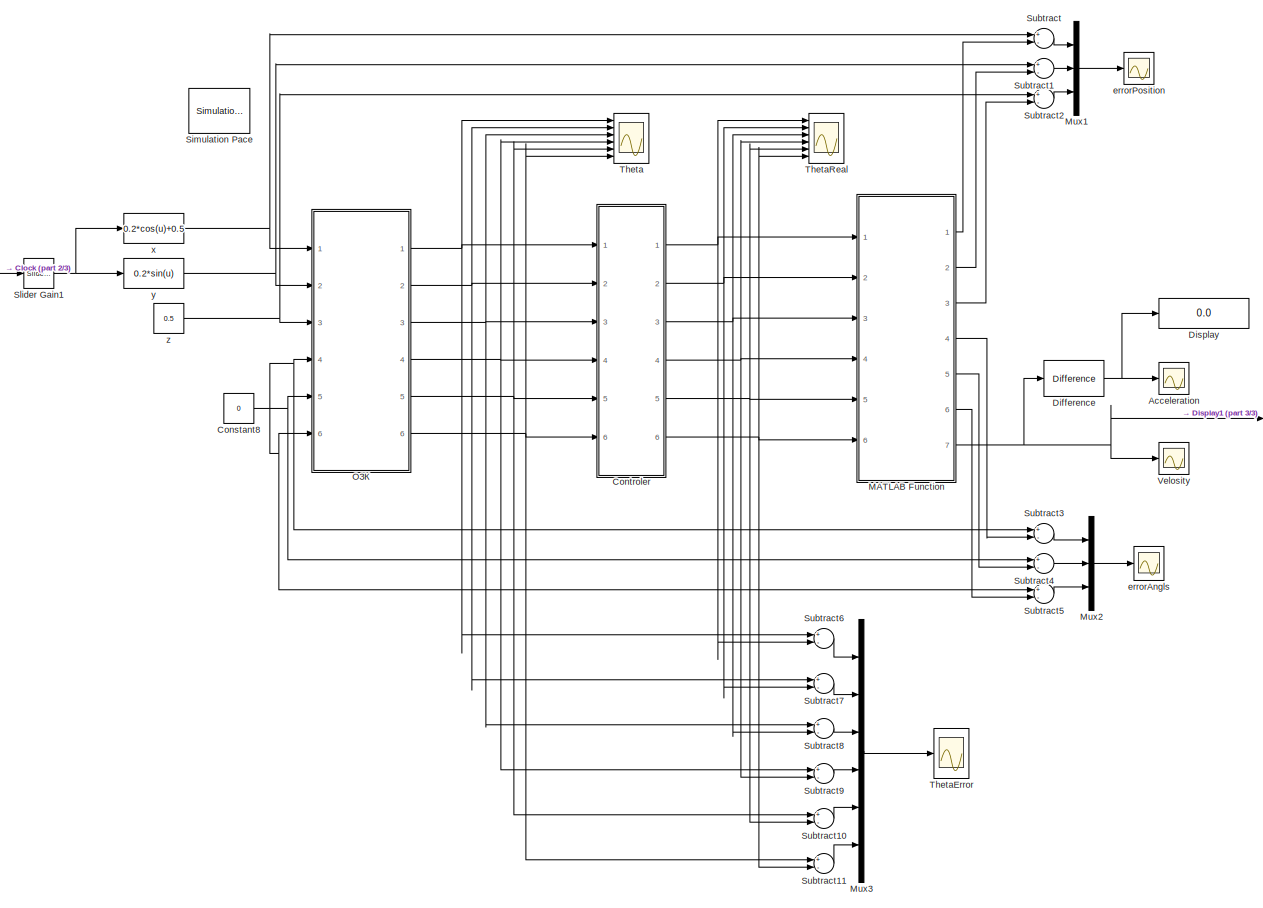
[diagram: root canvas - part 1/3, most of the canvas]
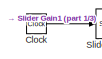
[diagram: root canvas - part 2/3, top left region]
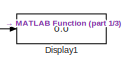
[diagram: root canvas - part 3/3, middle right region]
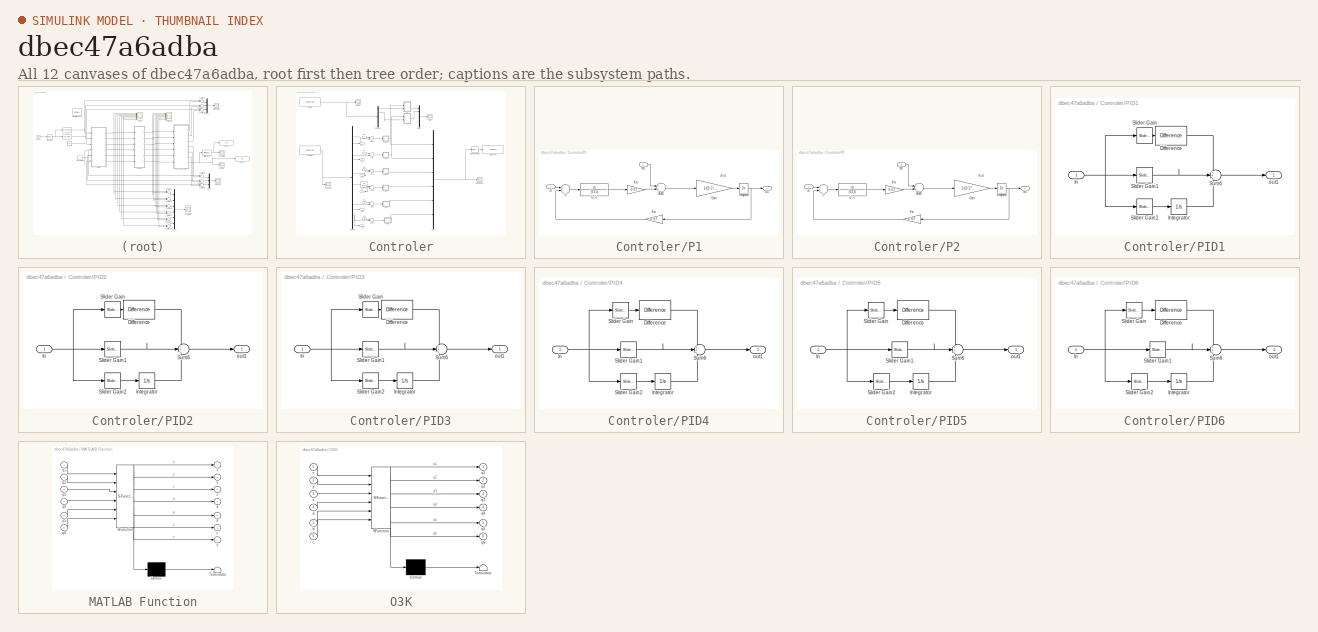
[diagram: thumbnail index - all 12 canvases of the model, root first then tree order]
MODEL slx_dbec47a6adba
KIND model
CONFIG AbsTol = auto
CONFIG EnableMultiTasking = off
CONFIG FixedStep = auto
CONFIG MaxStep = auto
CONFIG MinStep = auto
CONFIG RelTol = 1e-3
CONFIG SampleTimeConstraint = Unconstrained
CONFIG Solver = VariableStepAuto
CONFIG SolverName = VariableStepAuto
CONFIG StartTime = 0.0
CONFIG StopTime = inf
BLOCK [Scope] Acceleration
  Floating = off
  NumInputPorts = 1
  Ports = [1]
  ScopeSpecificationString = Simulink.scopes.TimeScopeBlockCfg('CurrentConfiguration', extmgr.ConfigurationSet(extmgr.Configuration('Core','General UI',true),extmgr.Configuration('Core','Source UI',true),extmgr.Configuration('Sources','WiredSimulink',true,'DataLoggingVariableName','ScopeData2'),extmgr.Configuration('Visuals','Time Domain',true,'SerializedDisplays',{struct('MinYLimReal','-0.00000000000000006','MaxYLimReal','0....<+1465ch>
BLOCK [Clock] Clock
BLOCK [Constant] Constant8
  Value = 0
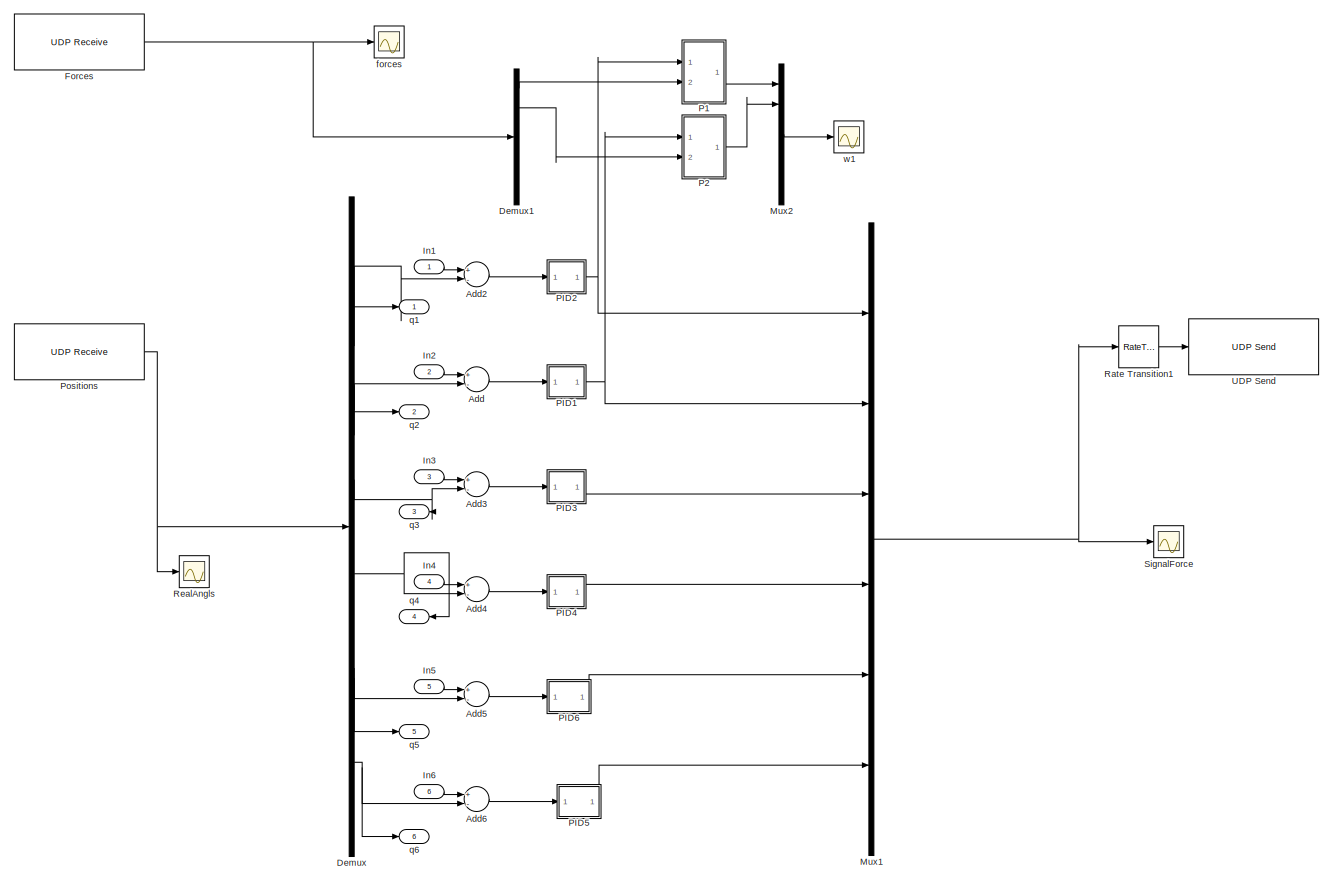
[diagram: Controler - part 1/1, most of the canvas]
BLOCK [SubSystem] Controler
  Ports = [6, 6]
  RequestExecContextInheritance = off
BLOCK [Sum] Controler/Add
  InputSameDT = off
  Inputs = +-
  OutDataTypeStr = Inherit: Inherit via internal rule
  Ports = [2, 1]
  SaturateOnIntegerOverflow = off
BLOCK [Sum] Controler/Add2
  InputSameDT = off
  Inputs = +-
  OutDataTypeStr = Inherit: Inherit via internal rule
  Ports = [2, 1]
  SaturateOnIntegerOverflow = off
BLOCK [Sum] Controler/Add3
  InputSameDT = off
  Inputs = +-
  OutDataTypeStr = Inherit: Inherit via internal rule
  Ports = [2, 1]
  SaturateOnIntegerOverflow = off
BLOCK [Sum] Controler/Add4
  InputSameDT = off
  Inputs = +-
  OutDataTypeStr = Inherit: Inherit via internal rule
  Ports = [2, 1]
  SaturateOnIntegerOverflow = off
BLOCK [Sum] Controler/Add5
  InputSameDT = off
  Inputs = +-
  OutDataTypeStr = Inherit: Inherit via internal rule
  Ports = [2, 1]
  SaturateOnIntegerOverflow = off
BLOCK [Sum] Controler/Add6
  InputSameDT = off
  Inputs = +-
  OutDataTypeStr = Inherit: Inherit via internal rule
  Ports = [2, 1]
  SaturateOnIntegerOverflow = off
BLOCK [Demux] Controler/Demux
  DisplayOption = bar
  Outputs = 6
  Ports = [1, 6]
BLOCK [Demux] Controler/Demux1
  DisplayOption = bar
  Outputs = 6
  Ports = [1, 6]
BLOCK [Reference] Controler/Forces  REF=instrumentlib/UDP Receive
  Ports = [0, 1]
  SourceBlock = instrumentlib/UDP Receive
  SourceProductBaseCode = IC
  SourceProductName = Instrument Control Toolbox
  SourceType = UDP Receive
BLOCK [Inport] Controler/In1
  IconDisplay = Port number
BLOCK [Inport] Controler/In2
  IconDisplay = Port number
  Port = 2
BLOCK [Inport] Controler/In3
  IconDisplay = Port number
  Port = 3
BLOCK [Inport] Controler/In4
  IconDisplay = Port number
  Port = 4
BLOCK [Inport] Controler/In5
  IconDisplay = Port number
  Port = 5
BLOCK [Inport] Controler/In6
  IconDisplay = Port number
  Port = 6
BLOCK [Mux] Controler/Mux1
  DisplayOption = bar
  Inputs = 6
  Ports = [6, 1]
BLOCK [Mux] Controler/Mux2
  DisplayOption = bar
  Inputs = 6
  Ports = [6, 1]
BLOCK [SubSystem] Controler/P1
  Ports = [2, 1]
  RequestExecContextInheritance = off
BLOCK [Sum] Controler/P1/Add1
  InputSameDT = off
  Inputs = -+
  OutDataTypeStr = Inherit: Inherit via internal rule
  Ports = [2, 1]
  SaturateOnIntegerOverflow = off
BLOCK [Gain] Controler/P1/Gain
  Gain = 1/(3.5*0.0001)
  OutDataTypeStr = Inherit: Inherit via internal rule
  ParamDataTypeStr = Inherit: Inherit via internal rule
  SaturateOnIntegerOverflow = off
BLOCK [Integrator] Controler/P1/Integrator
  Ports = [1, 1]
BLOCK [Gain] Controler/P1/Km
  Gain = 0.07
  OutDataTypeStr = Inherit: Inherit via internal rule
  ParamDataTypeStr = Inherit: Inherit via internal rule
  SaturateOnIntegerOverflow = off
BLOCK [Gain] Controler/P1/Kw
  Gain = 0.07
  OutDataTypeStr = Inherit: Inherit via internal rule
  ParamDataTypeStr = Inherit: Inherit via internal rule
  SaturateOnIntegerOverflow = off
BLOCK [Inport] Controler/P1/M1
  IconDisplay = Port number
  Port = 2
BLOCK [Sum] Controler/P1/U
  InputSameDT = off
  Inputs = +-
  OutDataTypeStr = Inherit: Inherit via internal rule
  Ports = [2, 1]
  SaturateOnIntegerOverflow = off
BLOCK [TransferFcn] Controler/P1/U->I
  Denominator = [0.2 5]
BLOCK [Inport] Controler/P1/u1
  IconDisplay = Port number
BLOCK [Outport] Controler/P1/w1
  IconDisplay = Port number
BLOCK [SubSystem] Controler/P2
  Ports = [2, 1]
  RequestExecContextInheritance = off
BLOCK [Sum] Controler/P2/Add1
  InputSameDT = off
  Inputs = -+
  OutDataTypeStr = Inherit: Inherit via internal rule
  Ports = [2, 1]
  SaturateOnIntegerOverflow = off
BLOCK [Gain] Controler/P2/Gain
  Gain = 1/(3.5*0.0001)
  OutDataTypeStr = Inherit: Inherit via internal rule
  ParamDataTypeStr = Inherit: Inherit via internal rule
  SaturateOnIntegerOverflow = off
BLOCK [Integrator] Controler/P2/Integrator
  Ports = [1, 1]
BLOCK [Gain] Controler/P2/Km
  Gain = 0.07
  OutDataTypeStr = Inherit: Inherit via internal rule
  ParamDataTypeStr = Inherit: Inherit via internal rule
  SaturateOnIntegerOverflow = off
BLOCK [Gain] Controler/P2/Kw
  Gain = 0.07
  OutDataTypeStr = Inherit: Inherit via internal rule
  ParamDataTypeStr = Inherit: Inherit via internal rule
  SaturateOnIntegerOverflow = off
BLOCK [Inport] Controler/P2/M1
  IconDisplay = Port number
  Port = 2
BLOCK [Sum] Controler/P2/U
  InputSameDT = off
  Inputs = +-
  OutDataTypeStr = Inherit: Inherit via internal rule
  Ports = [2, 1]
  SaturateOnIntegerOverflow = off
BLOCK [TransferFcn] Controler/P2/U->I
  Denominator = [0.2 5]
BLOCK [Inport] Controler/P2/u1
  IconDisplay = Port number
BLOCK [Outport] Controler/P2/w1
  IconDisplay = Port number
BLOCK [SubSystem] Controler/PID1
  Ports = [1, 1]
  RequestExecContextInheritance = off
BLOCK [Reference] Controler/PID1/Difference  REF=simulink/Discrete/Difference
  Ports = [1, 1]
  SourceBlock = simulink/Discrete/Difference
  SourceProductBaseCode = SL
  SourceProductName = Simulink
  SourceType = Difference
BLOCK [Inport] Controler/PID1/In
  IconDisplay = Port number
BLOCK [Integrator] Controler/PID1/Integrator
  Ports = [1, 1]
BLOCK [Reference] Controler/PID1/Slider Gain  REF=simulink/Math
Operations/Slider
Gain
  Ports = [1, 1]
  SourceBlock = simulink/Math\nOperations/Slider\nGain
  SourceProductBaseCode = SL
  SourceProductName = Simulink
  SourceType = Slider Gain
BLOCK [Reference] Controler/PID1/Slider Gain1  REF=simulink/Math
Operations/Slider
Gain
  Ports = [1, 1]
  SourceBlock = simulink/Math\nOperations/Slider\nGain
  SourceProductBaseCode = SL
  SourceProductName = Simulink
  SourceType = Slider Gain
BLOCK [Reference] Controler/PID1/Slider Gain2  REF=simulink/Math
Operations/Slider
Gain
  Ports = [1, 1]
  SourceBlock = simulink/Math\nOperations/Slider\nGain
  SourceProductBaseCode = SL
  SourceProductName = Simulink
  SourceType = Slider Gain
BLOCK [Sum] Controler/PID1/Sum6
  IconShape = round
  InputSameDT = off
  Inputs = ++|+
  OutDataTypeStr = Inherit: Inherit via internal rule
  Ports = [3, 1]
  SaturateOnIntegerOverflow = off
BLOCK [Outport] Controler/PID1/out1 
  IconDisplay = Port number
BLOCK [SubSystem] Controler/PID2
  Ports = [1, 1]
  RequestExecContextInheritance = off
BLOCK [Reference] Controler/PID2/Difference  REF=simulink/Discrete/Difference
  Ports = [1, 1]
  SourceBlock = simulink/Discrete/Difference
  SourceProductBaseCode = SL
  SourceProductName = Simulink
  SourceType = Difference
BLOCK [Inport] Controler/PID2/In
  IconDisplay = Port number
BLOCK [Integrator] Controler/PID2/Integrator
  Ports = [1, 1]
BLOCK [Reference] Controler/PID2/Slider Gain  REF=simulink/Math
Operations/Slider
Gain
  Ports = [1, 1]
  SourceBlock = simulink/Math\nOperations/Slider\nGain
  SourceProductBaseCode = SL
  SourceProductName = Simulink
  SourceType = Slider Gain
BLOCK [Reference] Controler/PID2/Slider Gain1  REF=simulink/Math
Operations/Slider
Gain
  Ports = [1, 1]
  SourceBlock = simulink/Math\nOperations/Slider\nGain
  SourceProductBaseCode = SL
  SourceProductName = Simulink
  SourceType = Slider Gain
BLOCK [Reference] Controler/PID2/Slider Gain2  REF=simulink/Math
Operations/Slider
Gain
  Ports = [1, 1]
  SourceBlock = simulink/Math\nOperations/Slider\nGain
  SourceProductBaseCode = SL
  SourceProductName = Simulink
  SourceType = Slider Gain
BLOCK [Sum] Controler/PID2/Sum6
  IconShape = round
  InputSameDT = off
  Inputs = ++|+
  OutDataTypeStr = Inherit: Inherit via internal rule
  Ports = [3, 1]
  SaturateOnIntegerOverflow = off
BLOCK [Outport] Controler/PID2/out1 
  IconDisplay = Port number
BLOCK [SubSystem] Controler/PID3
  Ports = [1, 1]
  RequestExecContextInheritance = off
BLOCK [Reference] Controler/PID3/Difference  REF=simulink/Discrete/Difference
  Ports = [1, 1]
  SourceBlock = simulink/Discrete/Difference
  SourceProductBaseCode = SL
  SourceProductName = Simulink
  SourceType = Difference
BLOCK [Inport] Controler/PID3/In
  IconDisplay = Port number
BLOCK [Integrator] Controler/PID3/Integrator
  Ports = [1, 1]
BLOCK [Reference] Controler/PID3/Slider Gain  REF=simulink/Math
Operations/Slider
Gain
  Ports = [1, 1]
  SourceBlock = simulink/Math\nOperations/Slider\nGain
  SourceProductBaseCode = SL
  SourceProductName = Simulink
  SourceType = Slider Gain
BLOCK [Reference] Controler/PID3/Slider Gain1  REF=simulink/Math
Operations/Slider
Gain
  Ports = [1, 1]
  SourceBlock = simulink/Math\nOperations/Slider\nGain
  SourceProductBaseCode = SL
  SourceProductName = Simulink
  SourceType = Slider Gain
BLOCK [Reference] Controler/PID3/Slider Gain2  REF=simulink/Math
Operations/Slider
Gain
  Ports = [1, 1]
  SourceBlock = simulink/Math\nOperations/Slider\nGain
  SourceProductBaseCode = SL
  SourceProductName = Simulink
  SourceType = Slider Gain
BLOCK [Sum] Controler/PID3/Sum6
  IconShape = round
  InputSameDT = off
  Inputs = ++|+
  OutDataTypeStr = Inherit: Inherit via internal rule
  Ports = [3, 1]
  SaturateOnIntegerOverflow = off
BLOCK [Outport] Controler/PID3/out1 
  IconDisplay = Port number
BLOCK [SubSystem] Controler/PID4
  Ports = [1, 1]
  RequestExecContextInheritance = off
BLOCK [Reference] Controler/PID4/Difference  REF=simulink/Discrete/Difference
  Ports = [1, 1]
  SourceBlock = simulink/Discrete/Difference
  SourceProductBaseCode = SL
  SourceProductName = Simulink
  SourceType = Difference
BLOCK [Inport] Controler/PID4/In
  IconDisplay = Port number
BLOCK [Integrator] Controler/PID4/Integrator
  Ports = [1, 1]
BLOCK [Reference] Controler/PID4/Slider Gain  REF=simulink/Math
Operations/Slider
Gain
  Ports = [1, 1]
  SourceBlock = simulink/Math\nOperations/Slider\nGain
  SourceProductBaseCode = SL
  SourceProductName = Simulink
  SourceType = Slider Gain
BLOCK [Reference] Controler/PID4/Slider Gain1  REF=simulink/Math
Operations/Slider
Gain
  Ports = [1, 1]
  SourceBlock = simulink/Math\nOperations/Slider\nGain
  SourceProductBaseCode = SL
  SourceProductName = Simulink
  SourceType = Slider Gain
BLOCK [Reference] Controler/PID4/Slider Gain2  REF=simulink/Math
Operations/Slider
Gain
  Ports = [1, 1]
  SourceBlock = simulink/Math\nOperations/Slider\nGain
  SourceProductBaseCode = SL
  SourceProductName = Simulink
  SourceType = Slider Gain
BLOCK [Sum] Controler/PID4/Sum6
  IconShape = round
  InputSameDT = off
  Inputs = ++|+
  OutDataTypeStr = Inherit: Inherit via internal rule
  Ports = [3, 1]
  SaturateOnIntegerOverflow = off
BLOCK [Outport] Controler/PID4/out1 
  IconDisplay = Port number
BLOCK [SubSystem] Controler/PID5
  Ports = [1, 1]
  RequestExecContextInheritance = off
BLOCK [Reference] Controler/PID5/Difference  REF=simulink/Discrete/Difference
  Ports = [1, 1]
  SourceBlock = simulink/Discrete/Difference
  SourceProductBaseCode = SL
  SourceProductName = Simulink
  SourceType = Difference
BLOCK [Inport] Controler/PID5/In
  IconDisplay = Port number
BLOCK [Integrator] Controler/PID5/Integrator
  Ports = [1, 1]
BLOCK [Reference] Controler/PID5/Slider Gain  REF=simulink/Math
Operations/Slider
Gain
  Ports = [1, 1]
  SourceBlock = simulink/Math\nOperations/Slider\nGain
  SourceProductBaseCode = SL
  SourceProductName = Simulink
  SourceType = Slider Gain
BLOCK [Reference] Controler/PID5/Slider Gain1  REF=simulink/Math
Operations/Slider
Gain
  Ports = [1, 1]
  SourceBlock = simulink/Math\nOperations/Slider\nGain
  SourceProductBaseCode = SL
  SourceProductName = Simulink
  SourceType = Slider Gain
BLOCK [Reference] Controler/PID5/Slider Gain2  REF=simulink/Math
Operations/Slider
Gain
  Ports = [1, 1]
  SourceBlock = simulink/Math\nOperations/Slider\nGain
  SourceProductBaseCode = SL
  SourceProductName = Simulink
  SourceType = Slider Gain
BLOCK [Sum] Controler/PID5/Sum6
  IconShape = round
  InputSameDT = off
  Inputs = ++|+
  OutDataTypeStr = Inherit: Inherit via internal rule
  Ports = [3, 1]
  SaturateOnIntegerOverflow = off
BLOCK [Outport] Controler/PID5/out1 
  IconDisplay = Port number
BLOCK [SubSystem] Controler/PID6
  Ports = [1, 1]
  RequestExecContextInheritance = off
BLOCK [Reference] Controler/PID6/Difference  REF=simulink/Discrete/Difference
  Ports = [1, 1]
  SourceBlock = simulink/Discrete/Difference
  SourceProductBaseCode = SL
  SourceProductName = Simulink
  SourceType = Difference
BLOCK [Inport] Controler/PID6/In
  IconDisplay = Port number
BLOCK [Integrator] Controler/PID6/Integrator
  Ports = [1, 1]
BLOCK [Reference] Controler/PID6/Slider Gain  REF=simulink/Math
Operations/Slider
Gain
  Ports = [1, 1]
  SourceBlock = simulink/Math\nOperations/Slider\nGain
  SourceProductBaseCode = SL
  SourceProductName = Simulink
  SourceType = Slider Gain
BLOCK [Reference] Controler/PID6/Slider Gain1  REF=simulink/Math
Operations/Slider
Gain
  Ports = [1, 1]
  SourceBlock = simulink/Math\nOperations/Slider\nGain
  SourceProductBaseCode = SL
  SourceProductName = Simulink
  SourceType = Slider Gain
BLOCK [Reference] Controler/PID6/Slider Gain2  REF=simulink/Math
Operations/Slider
Gain
  Ports = [1, 1]
  SourceBlock = simulink/Math\nOperations/Slider\nGain
  SourceProductBaseCode = SL
  SourceProductName = Simulink
  SourceType = Slider Gain
BLOCK [Sum] Controler/PID6/Sum6
  IconShape = round
  InputSameDT = off
  Inputs = ++|+
  OutDataTypeStr = Inherit: Inherit via internal rule
  Ports = [3, 1]
  SaturateOnIntegerOverflow = off
BLOCK [Outport] Controler/PID6/out1 
  IconDisplay = Port number
BLOCK [Reference] Controler/Positions  REF=instrumentlib/UDP Receive
  Ports = [0, 1]
  SourceBlock = instrumentlib/UDP Receive
  SourceProductBaseCode = IC
  SourceProductName = Instrument Control Toolbox
  SourceType = UDP Receive
BLOCK [RateTransition] Controler/Rate Transition1
  OutPortSampleTime = 0.01
BLOCK [Scope] Controler/RealAngls
  Floating = off
  NumInputPorts = 1
  Ports = [1]
  ScopeSpecificationString = Simulink.scopes.TimeScopeBlockCfg('CurrentConfiguration', extmgr.ConfigurationSet(extmgr.Configuration('Core','General UI',true),extmgr.Configuration('Core','Source UI',true),extmgr.Configuration('Sources','WiredSimulink',true,'DataLoggingVariableName','ScopeData4'),extmgr.Configuration('Visuals','Time Domain',true,'SerializedDisplays',{struct('MinYLimReal','-3.99848','MaxYLimReal','4.19025','YLab...<+1777ch>
BLOCK [Scope] Controler/SignalForce
  Floating = off
  NumInputPorts = 1
  Ports = [1]
  ScopeSpecificationString = Simulink.scopes.TimeScopeBlockCfg('CurrentConfiguration', extmgr.ConfigurationSet(extmgr.Configuration('Core','General UI',true),extmgr.Configuration('Core','Source UI',true),extmgr.Configuration('Sources','WiredSimulink',true,'DataLoggingVariableName','ScopeData2'),extmgr.Configuration('Visuals','Time Domain',true,'SerializedDisplays',{struct('MinYLimReal','-1.36085','MaxYLimReal','2.74756','YLab...<+1471ch>
BLOCK [Reference] Controler/UDP Send  REF=instrumentlib/UDP Send
  Ports = [1]
  SourceBlock = instrumentlib/UDP Send
  SourceProductBaseCode = IC
  SourceProductName = Instrument Control Toolbox
  SourceType = UDP Send
BLOCK [Scope] Controler/forces
  Floating = off
  NumInputPorts = 1
  Ports = [1]
  ScopeSpecificationString = Simulink.scopes.TimeScopeBlockCfg('CurrentConfiguration', extmgr.ConfigurationSet(extmgr.Configuration('Core','General UI',true),extmgr.Configuration('Core','Source UI',true),extmgr.Configuration('Sources','WiredSimulink',true,'DataLoggingVariableName','ScopeData1'),extmgr.Configuration('Visuals','Time Domain',true,'SerializedDisplays',{struct('MinYLimReal','-355.96424','MaxYLimReal','103.6232','Y...<+1526ch>
BLOCK [Outport] Controler/q1 
  IconDisplay = Port number
BLOCK [Outport] Controler/q2
  IconDisplay = Port number
  Port = 2
BLOCK [Outport] Controler/q3
  IconDisplay = Port number
  Port = 3
BLOCK [Outport] Controler/q4
  IconDisplay = Port number
  Port = 4
BLOCK [Outport] Controler/q5
  IconDisplay = Port number
  Port = 5
BLOCK [Outport] Controler/q6
  IconDisplay = Port number
  Port = 6
BLOCK [Scope] Controler/w1
  Floating = off
  NumInputPorts = 1
  Ports = [1]
  ScopeSpecificationString = Simulink.scopes.TimeScopeBlockCfg('CurrentConfiguration', extmgr.ConfigurationSet(extmgr.Configuration('Core','General UI',true),extmgr.Configuration('Core','Source UI',true),extmgr.Configuration('Sources','WiredSimulink',true,'DataLoggingVariableName','ScopeData2'),extmgr.Configuration('Visuals','Time Domain',true,'SerializedDisplays',{struct('MinYLimReal','-367.15193','MaxYLimReal','190.61701','...<+1520ch>
BLOCK [Reference] Difference  REF=simulink/Discrete/Difference
  Ports = [1, 1]
  SourceBlock = simulink/Discrete/Difference
  SourceProductBaseCode = SL
  SourceProductName = Simulink
  SourceType = Difference
BLOCK [Display] Display
  Decimation = 1
  Ports = [1]
BLOCK [Display] Display1
  Decimation = 1
  Ports = [1]
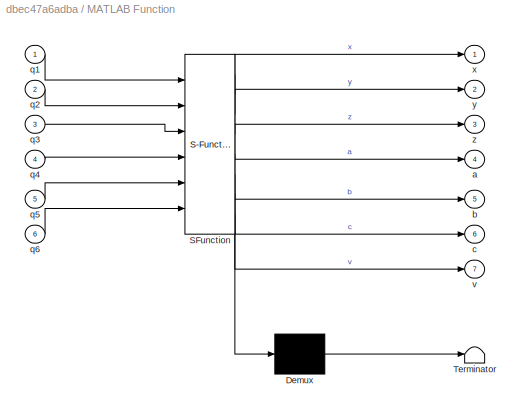
BLOCK [SubSystem] MATLAB Function
  ErrorFcn = Stateflow.Translate.translate
  PermitHierarchicalResolution = ExplicitOnly
  Ports = [6, 7]
  RequestExecContextInheritance = off
  SFBlockType = MATLAB Function
  TreatAsAtomicUnit = on
BLOCK [Demux] MATLAB Function/ Demux 
  Outputs = 1
  Ports = [1, 1]
BLOCK [S-Function] MATLAB Function/ SFunction 
  EnableBusSupport = on
  FunctionName = sf_sfun
  PortCounts = [6 8]
  Ports = [6, 8]
  SFcnIsStateOwnerBlock = off
  SFunctionDeploymentMode = off
  Tag = Stateflow S-Function Pid 2
BLOCK [Terminator] MATLAB Function/ Terminator 
BLOCK [Outport] MATLAB Function/a
  IconDisplay = Port number
  Port = 4
BLOCK [Outport] MATLAB Function/b
  IconDisplay = Port number
  Port = 5
BLOCK [Outport] MATLAB Function/c
  IconDisplay = Port number
  Port = 6
BLOCK [Inport] MATLAB Function/q1
  IconDisplay = Port number
BLOCK [Inport] MATLAB Function/q2
  IconDisplay = Port number
  Port = 2
BLOCK [Inport] MATLAB Function/q3
  IconDisplay = Port number
  Port = 3
BLOCK [Inport] MATLAB Function/q4
  IconDisplay = Port number
  Port = 4
BLOCK [Inport] MATLAB Function/q5
  IconDisplay = Port number
  Port = 5
BLOCK [Inport] MATLAB Function/q6
  IconDisplay = Port number
  Port = 6
BLOCK [Outport] MATLAB Function/v
  IconDisplay = Port number
  Port = 7
BLOCK [Outport] MATLAB Function/x
  IconDisplay = Port number
BLOCK [Outport] MATLAB Function/y
  IconDisplay = Port number
  Port = 2
BLOCK [Outport] MATLAB Function/z
  IconDisplay = Port number
  Port = 3
BLOCK [Mux] Mux1
  DisplayOption = bar
  Inputs = 3
  Ports = [3, 1]
BLOCK [Mux] Mux2
  DisplayOption = bar
  Inputs = 3
  Ports = [3, 1]
BLOCK [Mux] Mux3
  DisplayOption = bar
  Inputs = 6
  Ports = [6, 1]
BLOCK [Reference] Simulation Pace  REF=aerolibanimutils/Simulation Pace
  AttributesFormatString = %<SleepMode>\n%<SimulationPace> sec/sec
  Ports = []
  SourceBlock = aerolibanimutils/Simulation Pace
  SourceProductBaseCode = AE
  SourceProductName = Aerospace Blockset
  SourceType = Simulation Pace
BLOCK [Reference] Slider Gain1  REF=simulink/Math
Operations/Slider
Gain
  Ports = [1, 1]
  SourceBlock = simulink/Math\nOperations/Slider\nGain
  SourceProductBaseCode = SL
  SourceProductName = Simulink
  SourceType = Slider Gain
BLOCK [Sum] Subtract
  InputSameDT = off
  Inputs = +-
  OutDataTypeStr = Inherit: Inherit via internal rule
  Ports = [2, 1]
  SaturateOnIntegerOverflow = off
BLOCK [Sum] Subtract1
  InputSameDT = off
  Inputs = +-
  OutDataTypeStr = Inherit: Inherit via internal rule
  Ports = [2, 1]
  SaturateOnIntegerOverflow = off
BLOCK [Sum] Subtract10
  InputSameDT = off
  Inputs = +-
  OutDataTypeStr = Inherit: Inherit via internal rule
  Ports = [2, 1]
  SaturateOnIntegerOverflow = off
BLOCK [Sum] Subtract11
  InputSameDT = off
  Inputs = +-
  OutDataTypeStr = Inherit: Inherit via internal rule
  Ports = [2, 1]
  SaturateOnIntegerOverflow = off
BLOCK [Sum] Subtract2
  InputSameDT = off
  Inputs = +-
  OutDataTypeStr = Inherit: Inherit via internal rule
  Ports = [2, 1]
  SaturateOnIntegerOverflow = off
BLOCK [Sum] Subtract3
  InputSameDT = off
  Inputs = +-
  OutDataTypeStr = Inherit: Inherit via internal rule
  Ports = [2, 1]
  SaturateOnIntegerOverflow = off
BLOCK [Sum] Subtract4
  InputSameDT = off
  Inputs = +-
  OutDataTypeStr = Inherit: Inherit via internal rule
  Ports = [2, 1]
  SaturateOnIntegerOverflow = off
BLOCK [Sum] Subtract5
  InputSameDT = off
  Inputs = +-
  OutDataTypeStr = Inherit: Inherit via internal rule
  Ports = [2, 1]
  SaturateOnIntegerOverflow = off
BLOCK [Sum] Subtract6
  InputSameDT = off
  Inputs = +-
  OutDataTypeStr = Inherit: Inherit via internal rule
  Ports = [2, 1]
  SaturateOnIntegerOverflow = off
BLOCK [Sum] Subtract7
  InputSameDT = off
  Inputs = +-
  OutDataTypeStr = Inherit: Inherit via internal rule
  Ports = [2, 1]
  SaturateOnIntegerOverflow = off
BLOCK [Sum] Subtract8
  InputSameDT = off
  Inputs = +-
  OutDataTypeStr = Inherit: Inherit via internal rule
  Ports = [2, 1]
  SaturateOnIntegerOverflow = off
BLOCK [Sum] Subtract9
  InputSameDT = off
  Inputs = +-
  OutDataTypeStr = Inherit: Inherit via internal rule
  Ports = [2, 1]
  SaturateOnIntegerOverflow = off
BLOCK [Scope] Theta
  Floating = off
  NumInputPorts = 6
  Ports = [6]
  ScopeSpecificationString = Simulink.scopes.TimeScopeBlockCfg('CurrentConfiguration', extmgr.ConfigurationSet(extmgr.Configuration('Core','General UI',true),extmgr.Configuration('Core','Source UI',true),extmgr.Configuration('Sources','WiredSimulink',true,'DataLoggingVariableName','ScopeData1'),extmgr.Configuration('Visuals','Time Domain',true,'SerializedDisplays',{struct('MinYLimReal','-2.98284','MaxYLimReal','3.82208','YLab...<+1443ch>
BLOCK [Scope] ThetaError
  Floating = off
  NumInputPorts = 1
  Ports = [1]
  ScopeSpecificationString = Simulink.scopes.TimeScopeBlockCfg('CurrentConfiguration', extmgr.ConfigurationSet(extmgr.Configuration('Core','General UI',true),extmgr.Configuration('Core','Source UI',true),extmgr.Configuration('Sources','WiredSimulink',true,'DataLoggingVariableName','ScopeData5'),extmgr.Configuration('Visuals','Time Domain',true,'SerializedDisplays',{struct('MinYLimReal','-2.90517','MaxYLimReal','3.81346','YLab...<+1536ch>
BLOCK [Scope] ThetaReal
  Floating = off
  NumInputPorts = 6
  Ports = [6]
  ScopeSpecificationString = Simulink.scopes.TimeScopeBlockCfg('CurrentConfiguration', extmgr.ConfigurationSet(extmgr.Configuration('Core','General UI',true),extmgr.Configuration('Core','Source UI',true),extmgr.Configuration('Sources','WiredSimulink',true,'DataLoggingVariableName','ScopeData1'),extmgr.Configuration('Visuals','Time Domain',true,'SerializedDisplays',{struct('MinYLimReal','-3.99848','MaxYLimReal','4.19025','YLab...<+1471ch>
BLOCK [Scope] Velosity
  Floating = off
  NumInputPorts = 1
  Ports = [1]
  ScopeSpecificationString = Simulink.scopes.TimeScopeBlockCfg('CurrentConfiguration', extmgr.ConfigurationSet(extmgr.Configuration('Core','General UI',true),extmgr.Configuration('Core','Source UI',true),extmgr.Configuration('Sources','WiredSimulink',true,'DataLoggingVariableName','ScopeData1'),extmgr.Configuration('Visuals','Time Domain',true,'SerializedDisplays',{struct('MinYLimReal','-0.000000000000000006','MaxYLimReal','0...<+1480ch>
BLOCK [Scope] errorAngls
  Floating = off
  NumInputPorts = 1
  Ports = [1]
  ScopeSpecificationString = Simulink.scopes.TimeScopeBlockCfg('CurrentConfiguration', extmgr.ConfigurationSet(extmgr.Configuration('Core','General UI',true),extmgr.Configuration('Core','Source UI',true),extmgr.Configuration('Sources','WiredSimulink',true,'DataLoggingVariableName','ScopeData3'),extmgr.Configuration('Visuals','Time Domain',true,'SerializedDisplays',{struct('MinYLimReal','-3.92668','MaxYLimReal','3.92422','YLab...<+1392ch>
BLOCK [Scope] errorPosition
  Floating = off
  NumInputPorts = 1
  Ports = [1]
  ScopeSpecificationString = Simulink.scopes.TimeScopeBlockCfg('CurrentConfiguration', extmgr.ConfigurationSet(extmgr.Configuration('Core','General UI',true),extmgr.Configuration('Core','Source UI',true),extmgr.Configuration('Sources','WiredSimulink',true,'DataLoggingVariableName','ScopeData4'),extmgr.Configuration('Visuals','Time Domain',true),extmgr.Configuration('Tools','Plot Navigation',true),extmgr.Configuration('Tools',...<+40ch>
BLOCK [Fcn] x
  Expr = 0.2*cos(u)+0.5
BLOCK [Fcn] y
  Expr = 0.2*sin(u)
BLOCK [Constant] z
  Value = 0.5
BLOCK [SubSystem] ОЗК
  ErrorFcn = Stateflow.Translate.translate
  PermitHierarchicalResolution = ExplicitOnly
  Ports = [6, 6]
  RequestExecContextInheritance = off
  SFBlockType = MATLAB Function
  TreatAsAtomicUnit = on
BLOCK [Demux] ОЗК/ Demux 
  Outputs = 1
  Ports = [1, 1]
BLOCK [S-Function] ОЗК/ SFunction 
  EnableBusSupport = on
  FunctionName = sf_sfun
  PortCounts = [6 7]
  Ports = [6, 7]
  SFcnIsStateOwnerBlock = off
  SFunctionDeploymentMode = off
  Tag = Stateflow S-Function Pid 1
BLOCK [Terminator] ОЗК/ Terminator 
BLOCK [Inport] ОЗК/a
  IconDisplay = Port number
  Port = 4
BLOCK [Inport] ОЗК/b
  IconDisplay = Port number
  Port = 5
BLOCK [Inport] ОЗК/c
  IconDisplay = Port number
  Port = 6
BLOCK [Outport] ОЗК/q1
  IconDisplay = Port number
BLOCK [Outport] ОЗК/q2
  IconDisplay = Port number
  Port = 2
BLOCK [Outport] ОЗК/q3
  IconDisplay = Port number
  Port = 3
BLOCK [Outport] ОЗК/q4
  IconDisplay = Port number
  Port = 4
BLOCK [Outport] ОЗК/q5
  IconDisplay = Port number
  Port = 5
BLOCK [Outport] ОЗК/q6
  IconDisplay = Port number
  Port = 6
BLOCK [Inport] ОЗК/x
  IconDisplay = Port number
BLOCK [Inport] ОЗК/y
  IconDisplay = Port number
  Port = 2
BLOCK [Inport] ОЗК/z
  IconDisplay = Port number
  Port = 3
ANNOTATION Controler/P1: Accel
ANNOTATION Controler/P2: Accel
LINE Clock:1 -> Slider Gain1:1
NET Constant8:1 -> Subtract3:1, Subtract4:1, Subtract5:1, ОЗК:4, ОЗК:5, ОЗК:6
LINE Controler/Add2:1 -> Controler/PID2:1
LINE Controler/Add3:1 -> Controler/PID3:1
LINE Controler/Add4:1 -> Controler/PID4:1
LINE Controler/Add5:1 -> Controler/PID6:1
LINE Controler/Add6:1 -> Controler/PID5:1
LINE Controler/Add:1 -> Controler/PID1:1
LINE Controler/Demux1:1 -> Controler/P1:2
LINE Controler/Demux1:2 -> Controler/P2:2
NET Controler/Demux:1 -> Controler/Add2:2, Controler/q1 :1
NET Controler/Demux:2 -> Controler/Add:2, Controler/q2:1
NET Controler/Demux:3 -> Controler/Add3:2, Controler/q3:1
NET Controler/Demux:4 -> Controler/Add4:2, Controler/q4:1
NET Controler/Demux:5 -> Controler/Add5:2, Controler/q5:1
NET Controler/Demux:6 -> Controler/Add6:2, Controler/q6:1
NET Controler/Forces:1 -> Controler/Demux1:1, Controler/forces:1
LINE Controler/In1:1 -> Controler/Add2:1
LINE Controler/In2:1 -> Controler/Add:1
LINE Controler/In3:1 -> Controler/Add3:1
LINE Controler/In4:1 -> Controler/Add4:1
LINE Controler/In5:1 -> Controler/Add5:1
LINE Controler/In6:1 -> Controler/Add6:1
NET Controler/Mux1:1 -> Controler/Rate Transition1:1, Controler/SignalForce:1
LINE Controler/Mux2:1 -> Controler/w1:1
LINE Controler/P1/Add1:1 -> Controler/P1/Gain:1
LINE Controler/P1/Gain:1 -> Controler/P1/Integrator:1
NET Controler/P1/Integrator:1 -> Controler/P1/Kw:1, Controler/P1/w1:1
LINE Controler/P1/Km:1 -> Controler/P1/Add1:2
LINE Controler/P1/Kw:1 -> Controler/P1/U:2
LINE Controler/P1/M1:1 -> Controler/P1/Add1:1
LINE Controler/P1/U->I:1 -> Controler/P1/Km:1
LINE Controler/P1/U:1 -> Controler/P1/U->I:1
LINE Controler/P1/u1:1 -> Controler/P1/U:1
LINE Controler/P1:1 -> Controler/Mux2:1
LINE Controler/P2/Add1:1 -> Controler/P2/Gain:1
LINE Controler/P2/Gain:1 -> Controler/P2/Integrator:1
NET Controler/P2/Integrator:1 -> Controler/P2/Kw:1, Controler/P2/w1:1
LINE Controler/P2/Km:1 -> Controler/P2/Add1:2
LINE Controler/P2/Kw:1 -> Controler/P2/U:2
LINE Controler/P2/M1:1 -> Controler/P2/Add1:1
LINE Controler/P2/U->I:1 -> Controler/P2/Km:1
LINE Controler/P2/U:1 -> Controler/P2/U->I:1
LINE Controler/P2/u1:1 -> Controler/P2/U:1
LINE Controler/P2:1 -> Controler/Mux2:2
LINE Controler/PID1/Difference:1 -> Controler/PID1/Sum6:1
NET Controler/PID1/In:1 -> Controler/PID1/Slider Gain1:1, Controler/PID1/Slider Gain2:1, Controler/PID1/Slider Gain:1
LINE Controler/PID1/Integrator:1 -> Controler/PID1/Sum6:3
LINE Controler/PID1/Slider Gain1:1 -> Controler/PID1/Sum6:2
LINE Controler/PID1/Slider Gain2:1 -> Controler/PID1/Integrator:1
LINE Controler/PID1/Slider Gain:1 -> Controler/PID1/Difference:1
LINE Controler/PID1/Sum6:1 -> Controler/PID1/out1 :1
NET Controler/PID1:1 -> Controler/Mux1:2, Controler/P2:1
LINE Controler/PID2/Difference:1 -> Controler/PID2/Sum6:1
NET Controler/PID2/In:1 -> Controler/PID2/Slider Gain1:1, Controler/PID2/Slider Gain2:1, Controler/PID2/Slider Gain:1
LINE Controler/PID2/Integrator:1 -> Controler/PID2/Sum6:3
LINE Controler/PID2/Slider Gain1:1 -> Controler/PID2/Sum6:2
LINE Controler/PID2/Slider Gain2:1 -> Controler/PID2/Integrator:1
LINE Controler/PID2/Slider Gain:1 -> Controler/PID2/Difference:1
LINE Controler/PID2/Sum6:1 -> Controler/PID2/out1 :1
NET Controler/PID2:1 -> Controler/Mux1:1, Controler/P1:1
LINE Controler/PID3/Difference:1 -> Controler/PID3/Sum6:1
NET Controler/PID3/In:1 -> Controler/PID3/Slider Gain1:1, Controler/PID3/Slider Gain2:1, Controler/PID3/Slider Gain:1
LINE Controler/PID3/Integrator:1 -> Controler/PID3/Sum6:3
LINE Controler/PID3/Slider Gain1:1 -> Controler/PID3/Sum6:2
LINE Controler/PID3/Slider Gain2:1 -> Controler/PID3/Integrator:1
LINE Controler/PID3/Slider Gain:1 -> Controler/PID3/Difference:1
LINE Controler/PID3/Sum6:1 -> Controler/PID3/out1 :1
LINE Controler/PID3:1 -> Controler/Mux1:3
LINE Controler/PID4/Difference:1 -> Controler/PID4/Sum6:1
NET Controler/PID4/In:1 -> Controler/PID4/Slider Gain1:1, Controler/PID4/Slider Gain2:1, Controler/PID4/Slider Gain:1
LINE Controler/PID4/Integrator:1 -> Controler/PID4/Sum6:3
LINE Controler/PID4/Slider Gain1:1 -> Controler/PID4/Sum6:2
LINE Controler/PID4/Slider Gain2:1 -> Controler/PID4/Integrator:1
LINE Controler/PID4/Slider Gain:1 -> Controler/PID4/Difference:1
LINE Controler/PID4/Sum6:1 -> Controler/PID4/out1 :1
LINE Controler/PID4:1 -> Controler/Mux1:4
LINE Controler/PID5/Difference:1 -> Controler/PID5/Sum6:1
NET Controler/PID5/In:1 -> Controler/PID5/Slider Gain1:1, Controler/PID5/Slider Gain2:1, Controler/PID5/Slider Gain:1
LINE Controler/PID5/Integrator:1 -> Controler/PID5/Sum6:3
LINE Controler/PID5/Slider Gain1:1 -> Controler/PID5/Sum6:2
LINE Controler/PID5/Slider Gain2:1 -> Controler/PID5/Integrator:1
LINE Controler/PID5/Slider Gain:1 -> Controler/PID5/Difference:1
LINE Controler/PID5/Sum6:1 -> Controler/PID5/out1 :1
LINE Controler/PID5:1 -> Controler/Mux1:6
LINE Controler/PID6/Difference:1 -> Controler/PID6/Sum6:1
NET Controler/PID6/In:1 -> Controler/PID6/Slider Gain1:1, Controler/PID6/Slider Gain2:1, Controler/PID6/Slider Gain:1
LINE Controler/PID6/Integrator:1 -> Controler/PID6/Sum6:3
LINE Controler/PID6/Slider Gain1:1 -> Controler/PID6/Sum6:2
LINE Controler/PID6/Slider Gain2:1 -> Controler/PID6/Integrator:1
LINE Controler/PID6/Slider Gain:1 -> Controler/PID6/Difference:1
LINE Controler/PID6/Sum6:1 -> Controler/PID6/out1 :1
LINE Controler/PID6:1 -> Controler/Mux1:5
NET Controler/Positions:1 -> Controler/Demux:1, Controler/RealAngls:1
LINE Controler/Rate Transition1:1 -> Controler/UDP Send:1
NET Controler:1 -> MATLAB Function:1, Subtract6:2, ThetaReal:1
NET Controler:2 -> MATLAB Function:2, Subtract7:2, ThetaReal:2
NET Controler:3 -> MATLAB Function:3, Subtract8:2, ThetaReal:3
NET Controler:4 -> MATLAB Function:4, Subtract9:2, ThetaReal:4
NET Controler:5 -> MATLAB Function:5, Subtract10:2, ThetaReal:5
NET Controler:6 -> MATLAB Function:6, Subtract11:2, ThetaReal:6
NET Difference:1 -> Acceleration:1, Display:1
LINE MATLAB Function:1 -> Subtract:2
LINE MATLAB Function:2 -> Subtract1:2
LINE MATLAB Function:3 -> Subtract2:2
LINE MATLAB Function:4 -> Subtract3:2
LINE MATLAB Function:5 -> Subtract4:2
LINE MATLAB Function:6 -> Subtract5:2
NET MATLAB Function:7 -> Difference:1, Display1:1, Velosity:1
LINE Mux1:1 -> errorPosition:1
LINE Mux2:1 -> errorAngls:1
LINE Mux3:1 -> ThetaError:1
NET Slider Gain1:1 -> x:1, y:1
LINE Subtract10:1 -> Mux3:5
LINE Subtract11:1 -> Mux3:6
LINE Subtract1:1 -> Mux1:2
LINE Subtract2:1 -> Mux1:3
LINE Subtract3:1 -> Mux2:1
LINE Subtract4:1 -> Mux2:2
LINE Subtract5:1 -> Mux2:3
LINE Subtract6:1 -> Mux3:1
LINE Subtract7:1 -> Mux3:2
LINE Subtract8:1 -> Mux3:3
LINE Subtract9:1 -> Mux3:4
LINE Subtract:1 -> Mux1:1
NET x:1 -> Subtract:1, ОЗК:1
NET y:1 -> Subtract1:1, ОЗК:2
NET z:1 -> Subtract2:1, ОЗК:3
NET ОЗК:1 -> Controler:1, Subtract6:1, Theta:1
NET ОЗК:2 -> Controler:2, Subtract7:1, Theta:2
NET ОЗК:3 -> Controler:3, Subtract8:1, Theta:3
NET ОЗК:4 -> Controler:4, Subtract9:1, Theta:4
NET ОЗК:5 -> Controler:5, Subtract10:1, Theta:5
NET ОЗК:6 -> Controler:6, Subtract11:1, Theta:6
note: NET lines group one-source signal fan-out (src -> all destinations, sorted); 1:1 wires keep LINE
CHART ОЗК states=1 transitions=1
  STATE_LABEL 'eML_blk_kernel()'
  STATE_LABEL 'SCRIPT:\nfunction [q1,q2,q3,q4,q5,q6] = InverseKinematics(x,y,z,a,b,c)\n%This function is used for inverse kinematics calculations.\n\n%link lenghts in mm\n\n\n% d1=0.4865;\n% d2=0.150;\n% d3=0.475;\n% d4=0.600;\n% d6=0.065;\nd1 = 0.352;\nd2 = 0.070;\nd3 = 0.360;\nd4 = 0.380;\nd6=0.065;\n\nalpha = [ 0,-pi/2, 0, -pi/2, pi/2, -pi/2];\n% a = [d2 d3 0 0 0 0];\n% d = [d1 0 0 d4 0 d6];\n\n%%%%%%%%%%%%%%%%%Inverse kinematics%...<+2722ch>'
CHART MATLAB Function states=1 transitions=1
  STATE_LABEL 'eML_blk_kernel()'
  STATE_LABEL 'SCRIPT:\nfunction [x,y,z,a,b,c,v] = ForvardKinematics(q1,q2,q3,q4,q5,q6)\n\n%   i       Link twist     Link Length     Link Offset    Joint Angle    \n%--------------------------------------------------------------------------\n%   1        -90              d2             d1                 theta1*     \n%   2         0               d3              0               theta2 - 90*  \n%   3        -90       ...<+2492ch>'
